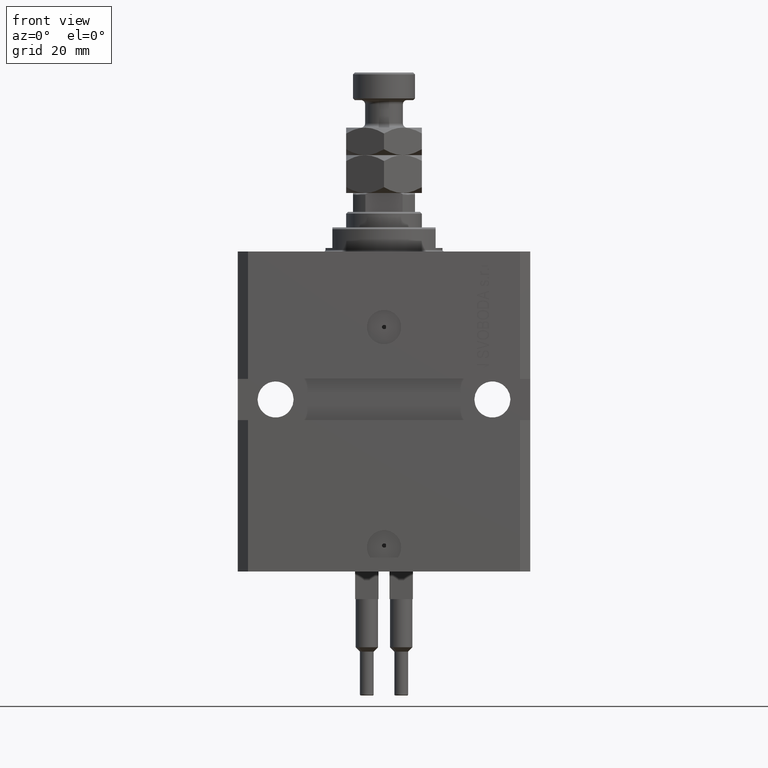
[diagram: clean part render]
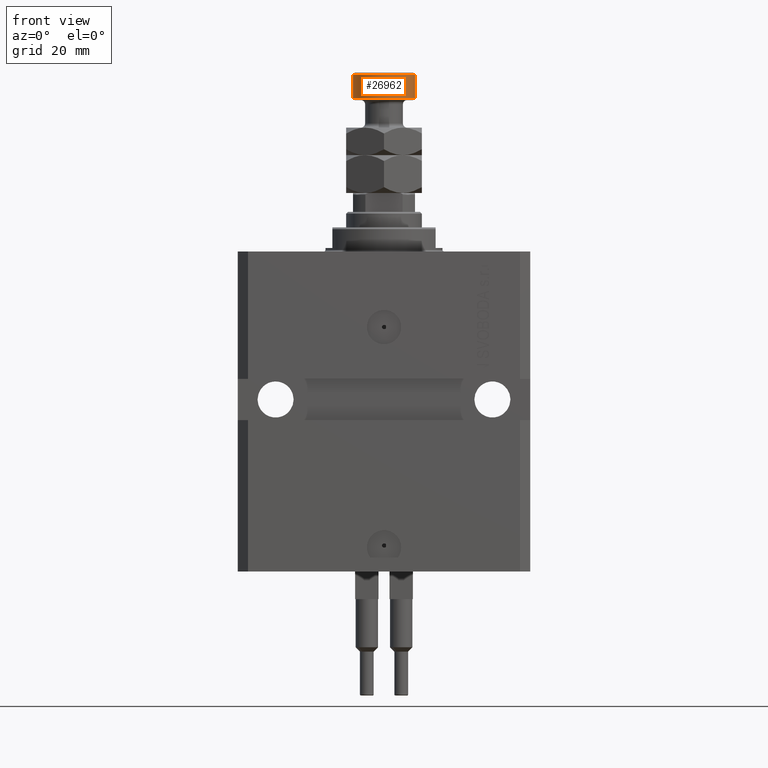
[diagram: same view with one face highlighted and labeled with its STEP entity id]
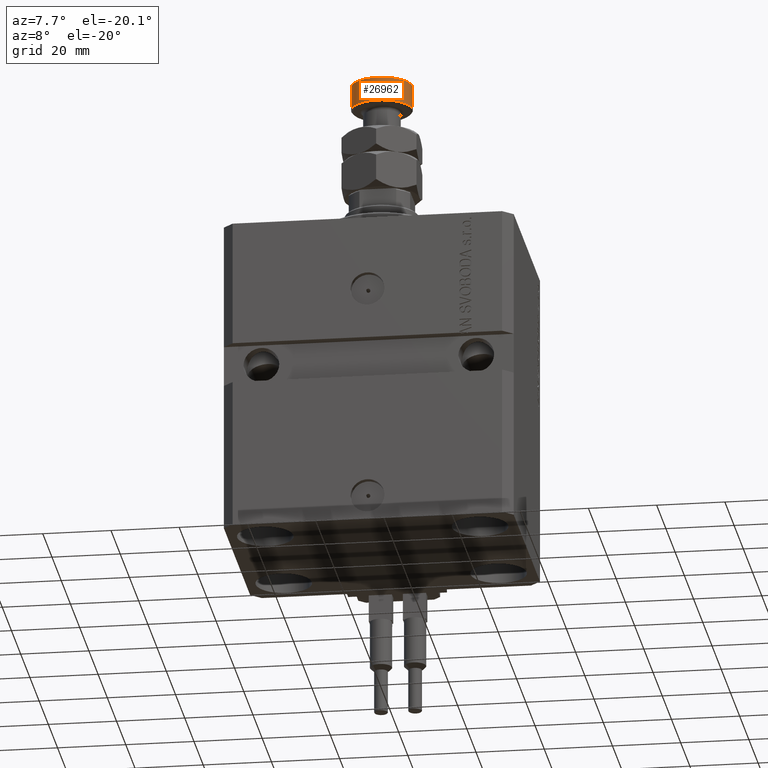
[diagram: same view with one face highlighted and labeled with its STEP entity id]
A machine part, front view. The second image highlights one B-rep face of the part: STEP entity #26962.
A second angle (auxiliary view) of the same face is appended — the face is thin or edge-on in the first view.
In plain terms, the highlighted cylindrical surface (edge-blend (fillet) strip) has radius 9 mm, axis along (-0, -0, -1).
Its self-contained STEP definition (entity closure, byte-faithful):
#843 = CIRCLE ( 'NONE', #27630, 9.000000000000000000 ) ;
#893 = VECTOR ( 'NONE', #40212, 1000.000000000000000 ) ;
#1329 = DIRECTION ( 'NONE',  ( -0.000000000000000000, -0.000000000000000000, -1.000000000000000000 ) ) ;
#2911 = EDGE_CURVE ( 'NONE', #11112, #47214, #843, .T. ) ;
#5832 = EDGE_CURVE ( 'NONE', #43919, #11112, #30763, .T. ) ;
#7187 = AXIS2_PLACEMENT_3D ( 'NONE', #28171, #1329, #48149 ) ;
#7693 = VERTEX_POINT ( 'NONE', #42028 ) ;
#8662 = ORIENTED_EDGE ( 'NONE', *, *, #28691, .T. ) ;
#11112 = VERTEX_POINT ( 'NONE', #49879 ) ;
#14666 = CARTESIAN_POINT ( 'NONE',  ( 9.000000000000000000, 1.102182119232617714E-15, 27.50000000000000000 ) ) ;
#14670 = VECTOR ( 'NONE', #18594, 1000.000000000000000 ) ;
#15015 = CARTESIAN_POINT ( 'NONE',  ( 0.000000000000000000, 0.000000000000000000, 34.49999999999999289 ) ) ;
#15759 = DIRECTION ( 'NONE',  ( 1.000000000000000000, 0.000000000000000000, 0.000000000000000000 ) ) ;
#18594 = DIRECTION ( 'NONE',  ( -0.000000000000000000, -0.000000000000000000, -1.000000000000000000 ) ) ;
#18809 = DIRECTION ( 'NONE',  ( 0.000000000000000000, 0.000000000000000000, -1.000000000000000000 ) ) ;
#20313 = FACE_OUTER_BOUND ( 'NONE', #26810, .T. ) ;
#21842 = ORIENTED_EDGE ( 'NONE', *, *, #31442, .F. ) ;
#21954 = DIRECTION ( 'NONE',  ( -0.000000000000000000, -0.000000000000000000, 1.000000000000000000 ) ) ;
#24615 = ORIENTED_EDGE ( 'NONE', *, *, #5832, .T. ) ;
#24876 = CYLINDRICAL_SURFACE ( 'NONE', #7187, 9.000000000000000000 ) ;
#26810 = EDGE_LOOP ( 'NONE', ( #21842, #8662, #24615, #39650 ) ) ;
#26962 = ADVANCED_FACE ( 'NONE', ( #20313 ), #24876, .T. ) ;
#27630 = AXIS2_PLACEMENT_3D ( 'NONE', #33351, #21954, #29558 ) ;
#28171 = CARTESIAN_POINT ( 'NONE',  ( 0.000000000000000000, 0.000000000000000000, 35.00000000000000000 ) ) ;
#28691 = EDGE_CURVE ( 'NONE', #7693, #43919, #38776, .T. ) ;
#29558 = DIRECTION ( 'NONE',  ( 1.000000000000000000, 0.000000000000000000, 0.000000000000000000 ) ) ;
#30763 = LINE ( 'NONE', #37845, #14670 ) ;
#31442 = EDGE_CURVE ( 'NONE', #7693, #47214, #37146, .T. ) ;
#33351 = CARTESIAN_POINT ( 'NONE',  ( 0.000000000000000000, 0.000000000000000000, 27.50000000000000000 ) ) ;
#37146 = LINE ( 'NONE', #48289, #893 ) ;
#37845 = CARTESIAN_POINT ( 'NONE',  ( -9.000000000000000000, 0.000000000000000000, 35.00000000000000000 ) ) ;
#38776 = CIRCLE ( 'NONE', #44452, 9.000000000000000000 ) ;
#39650 = ORIENTED_EDGE ( 'NONE', *, *, #2911, .T. ) ;
#40212 = DIRECTION ( 'NONE',  ( -0.000000000000000000, -0.000000000000000000, -1.000000000000000000 ) ) ;
#42028 = CARTESIAN_POINT ( 'NONE',  ( 9.000000000000000000, 1.102182119232617714E-15, 34.49999999999999289 ) ) ;
#43919 = VERTEX_POINT ( 'NONE', #50040 ) ;
#44452 = AXIS2_PLACEMENT_3D ( 'NONE', #15015, #18809, #15759 ) ;
#47214 = VERTEX_POINT ( 'NONE', #14666 ) ;
#48149 = DIRECTION ( 'NONE',  ( -1.000000000000000000, 0.000000000000000000, 0.000000000000000000 ) ) ;
#48289 = CARTESIAN_POINT ( 'NONE',  ( 9.000000000000000000, 1.102182119232617714E-15, 35.00000000000000000 ) ) ;
#49879 = CARTESIAN_POINT ( 'NONE',  ( -9.000000000000000000, 0.000000000000000000, 27.50000000000000000 ) ) ;
#50040 = CARTESIAN_POINT ( 'NONE',  ( -9.000000000000000000, 0.000000000000000000, 34.49999999999999289 ) ) ;